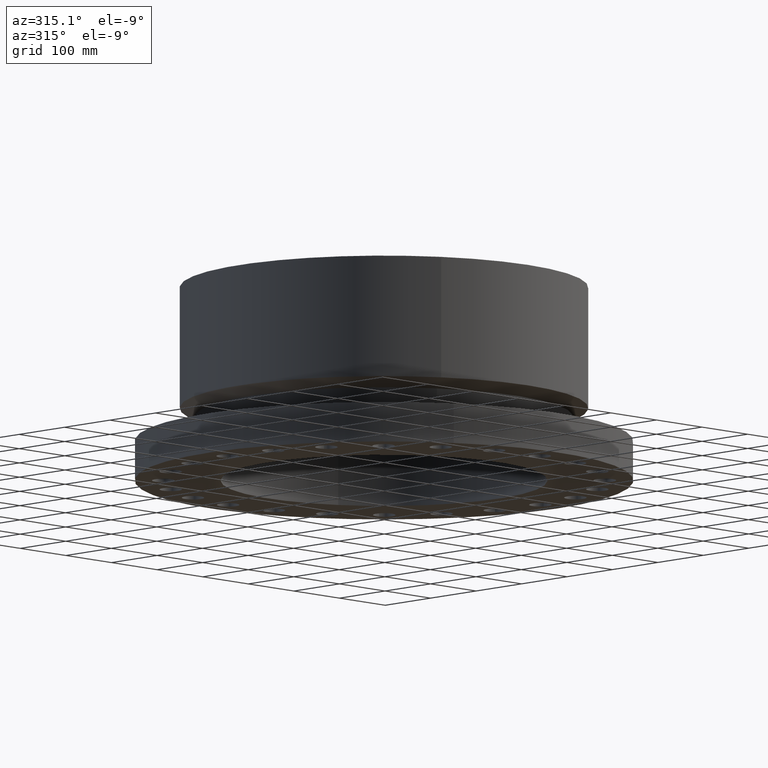
[diagram: clean part render]
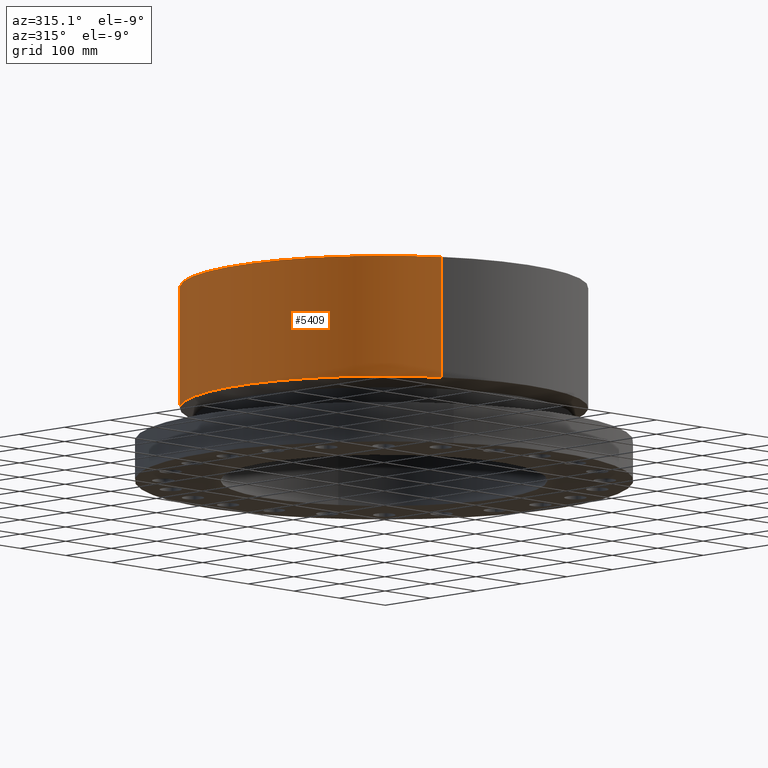
[diagram: same view with one face highlighted and labeled with its STEP entity id]
A machine part, auxiliary view. The second image highlights one B-rep face of the part: STEP entity #5409.
In plain terms, the highlighted cylindrical surface (partial cylindrical patch) has radius 317.5 mm, axis along (0, 0, -1).
Its self-contained STEP definition (entity closure, byte-faithful):
#2514=AXIS2_PLACEMENT_3D('Circle Axis2P3D',#2512,#2513,$) ;
#5370=AXIS2_PLACEMENT_3D('Cylinder Axis2P3D',#5367,#5368,#5369) ;
#5400=AXIS2_PLACEMENT_3D('Circle Axis2P3D',#5398,#5399,$) ;
#2490=CARTESIAN_POINT('Vertex',(5.99281923258,10.9697820237,4.48020925306)) ;
#2497=CARTESIAN_POINT('Vertex',(-5.99281923258,-10.9697820237,4.48020925306)) ;
#2512=CARTESIAN_POINT('Axis2P3D Location',(0.,0.,4.48020925306)) ;
#5367=CARTESIAN_POINT('Axis2P3D Location',(0.,0.,5.93750000002)) ;
#5372=CARTESIAN_POINT('Line Origine',(5.99281923258,10.9697820237,8.20885462655)) ;
#5376=CARTESIAN_POINT('Vertex',(5.99281923258,10.9697820237,11.9375)) ;
#5383=CARTESIAN_POINT('Vertex',(-5.99281923258,-10.9697820237,11.9375)) ;
#5386=CARTESIAN_POINT('Line Origine',(-5.99281923258,-10.9697820237,8.20885462655)) ;
#5398=CARTESIAN_POINT('Axis2P3D Location',(0.,0.,11.9375)) ;
#2513=DIRECTION('Axis2P3D Direction',(-0.,0.,0.0393700787402)) ;
#5368=DIRECTION('Axis2P3D Direction',(0.,0.,-0.0393700787402)) ;
#5369=DIRECTION('Axis2P3D XDirection',(-0.0188750212049,-0.0345504945626,0.)) ;
#5373=DIRECTION('Vector Direction',(0.,0.,-0.0393700787402)) ;
#5387=DIRECTION('Vector Direction',(0.,0.,-0.0393700787402)) ;
#5399=DIRECTION('Axis2P3D Direction',(0.,0.,-0.0393700787402)) ;
#5374=VECTOR('Line Direction',#5373,0.0393700787402) ;
#5388=VECTOR('Line Direction',#5387,0.0393700787402) ;
#5404=ORIENTED_EDGE('',*,*,#2516,.F.) ;
#5405=ORIENTED_EDGE('',*,*,#5390,.T.) ;
#5406=ORIENTED_EDGE('',*,*,#5402,.T.) ;
#5407=ORIENTED_EDGE('',*,*,#5378,.F.) ;
#5409=ADVANCED_FACE('PartBody',(#5408),#5371,.T.) ;
#2515=CIRCLE('generated circle',#2514,12.5000000001) ;
#5401=CIRCLE('generated circle',#5400,12.5000000001) ;
#5371=CYLINDRICAL_SURFACE('generated cylinder',#5370,12.5000000001) ;
#2516=EDGE_CURVE('',#2498,#2491,#2515,.F.) ;
#5378=EDGE_CURVE('',#2491,#5377,#5375,.F.) ;
#5390=EDGE_CURVE('',#2498,#5384,#5389,.F.) ;
#5402=EDGE_CURVE('',#5384,#5377,#5401,.T.) ;
#5403=EDGE_LOOP('',(#5404,#5405,#5406,#5407)) ;
#5408=FACE_OUTER_BOUND('',#5403,.T.) ;
#5375=LINE('Line',#5372,#5374) ;
#5389=LINE('Line',#5386,#5388) ;
#2491=VERTEX_POINT('',#2490) ;
#2498=VERTEX_POINT('',#2497) ;
#5377=VERTEX_POINT('',#5376) ;
#5384=VERTEX_POINT('',#5383) ;